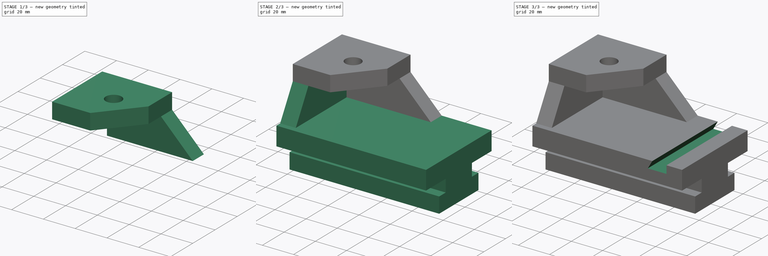
[diagram: build sequence overview — one tinted view per stage of 3, left to right]
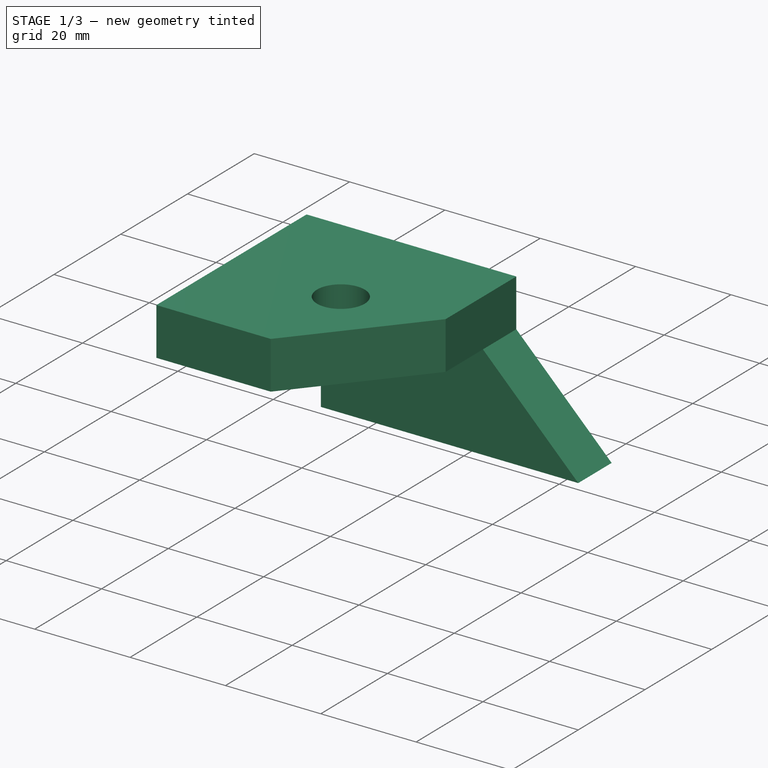
[diagram: stage 1 of 3 — iso view after this stage's code; geometry added in this stage tinted green]
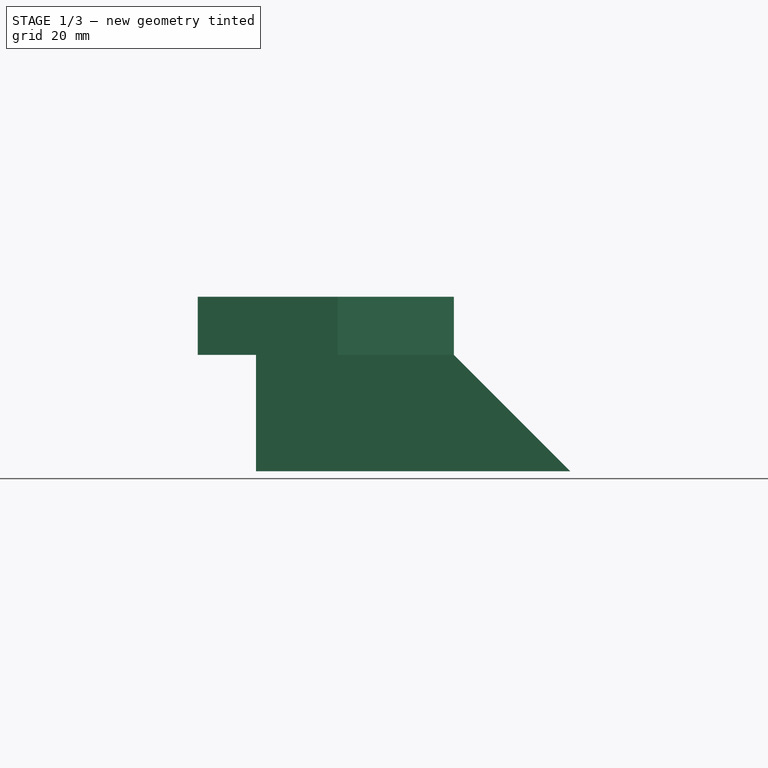
[diagram: stage 1 of 3 — front view after this stage's code; geometry added in this stage tinted green]
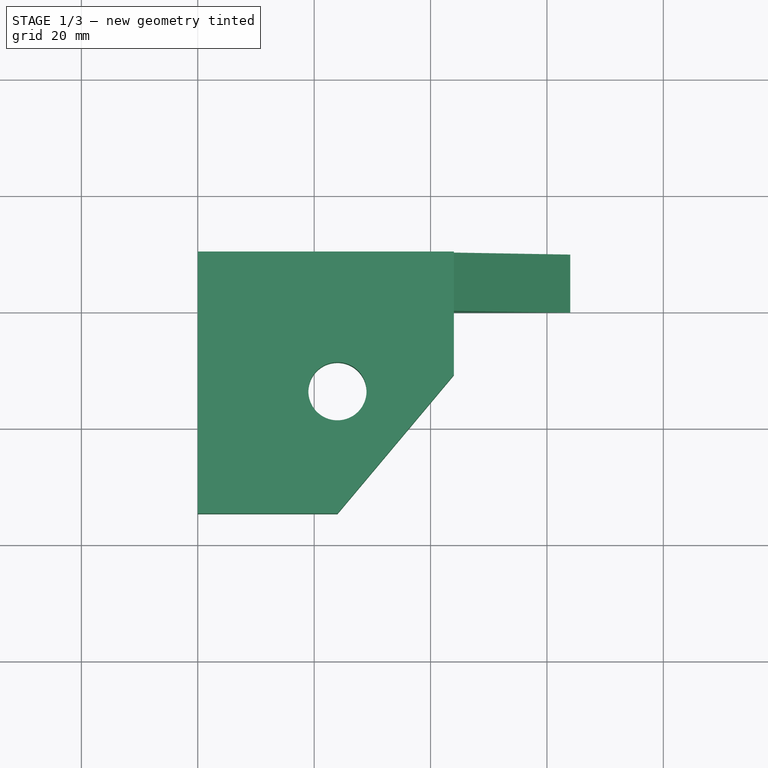
[diagram: stage 1 of 3 — top view after this stage's code; geometry added in this stage tinted green]
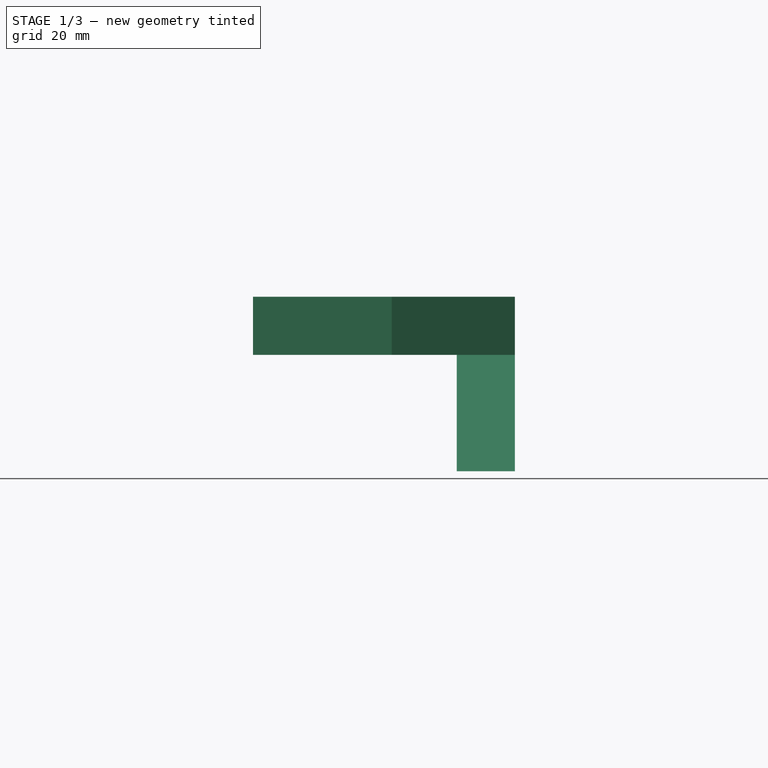
[diagram: stage 1 of 3 — right view after this stage's code; geometry added in this stage tinted green]
FCSTD DOCUMENT  (FreeCAD 0.16R)
Label: Fig 3.38 Final
License: All rights reserved
LicenseURL: http://en.wikipedia.org/wiki/All_rights_reserved
objects: Sketcher::SketchObject×5, PartDesign::Pad×4, PartDesign::Pocket×1, Part::MultiFuse×1
note: 16 computed .brp shape members not serialized (recipe doc carries the construction recipe); baked Part::Feature solids carry a one-line shape summary decoded from their .brp

FEATURE [Sketcher::SketchObject] Sketch003
  Placement = pos=(0,30,0) rot=(-1,0,0;4.71239rad)
  sketch-geometry (5):
    g0: LineSegment StartX=10 StartY=50 StartZ=0 EndX=10 EndY=30 EndZ=0
    g1: LineSegment StartX=10 StartY=30 StartZ=0 EndX=64 EndY=30 EndZ=0
    g2: LineSegment StartX=64 StartY=30 StartZ=0 EndX=44 EndY=50 EndZ=0
    g3: LineSegment StartX=44 StartY=50 StartZ=0 EndX=10 EndY=50 EndZ=0
    g4: LineSegment [constr] StartX=44 StartY=50 StartZ=0 EndX=44 EndY=34.2666 EndZ=0
  constraints (14):
    c: Vertical(g0)
    c: Coincident(g0,g1)
    c: Horizontal(g1)
    c: Coincident(g1,g2)
    c: Coincident(g2,g3)
    c: Coincident(g3,g0)
    c: Horizontal(g3)
    c: DistanceY(g-1,g0) = 50
    c: DistanceY(g-1,g0) = 30
    c: DistanceX(g-1,g0) = 10
    c: Coincident(g4,g2)
    c: Vertical(g4)
    c: Angle(g4,g2) = 0.785398
    c: DistanceX(g-1,g2) = 44
FEATURE [PartDesign::Pad] Pad002
  Length = 10
  Length2 = 100
  Placement = pos=(0,30,0) rot=(-1,0,0;4.71239rad)
  Sketch = -> Sketch003
  Type = 0
FEATURE [Sketcher::SketchObject] Sketch004
  Placement = pos=(0,30,50) rot=(0,0,1;3.14159rad)
  Support = -> Pad002 [Face4]
  sketch-geometry (8):
    g0: LineSegment StartX=0 StartY=0 StartZ=0 EndX=0 EndY=45 EndZ=0
    g1: LineSegment StartX=0 StartY=45 StartZ=0 EndX=-24 EndY=45 EndZ=0
    g2: LineSegment StartX=-24 StartY=45 StartZ=0 EndX=-44 EndY=21.1649 EndZ=0
    g3: LineSegment StartX=-44 StartY=21.1649 StartZ=0 EndX=-44 EndY=0 EndZ=0
    g4: LineSegment StartX=-44 StartY=0 StartZ=0 EndX=0 EndY=0 EndZ=0
    g5: Circle CenterX=-24 CenterY=24 CenterZ=0 NormalX=0 NormalY=0 NormalZ=1 Radius=5
    g6: LineSegment [constr] StartX=-24 StartY=45 StartZ=0 EndX=-24 EndY=11.0778 EndZ=0
    g7: LineSegment [constr] StartX=-24 StartY=45 StartZ=0 EndX=-24 EndY=33.7745 EndZ=0
  constraints (20):
    c: Coincident(g-1,g0)
    c: Vertical(g0)
    c: Coincident(g0,g1)
    c: Horizontal(g1)
    c: Coincident(g1,g2)
    c: Coincident(g2,g3)
    c: PointOnObject(g3,g-1)
    c: Vertical(g3)
    c: Coincident(g3,g4)
    c: Coincident(g4,g0)
    c: DistanceY(g0,g0) = 45
    c: DistanceX(g1,g1) = 24
    c: Angle(g2,g1) = 2.26893
    c: Radius(g5) = 5
    c: Coincident(g6,g1)
    c: Vertical(g6)
    c: PointOnObject(g5,g6)
    c: DistanceY(g-1,g5) = 24
    c: Coincident(g7,g1)
    c: PointOnObject(g7,g6)
FEATURE [PartDesign::Pad] Pad003
  Length = 10
  Length2 = 100
  Placement = pos=(0,30,0) rot=(-1,0,0;4.71239rad)
  Sketch = -> Sketch004
  Type = 0
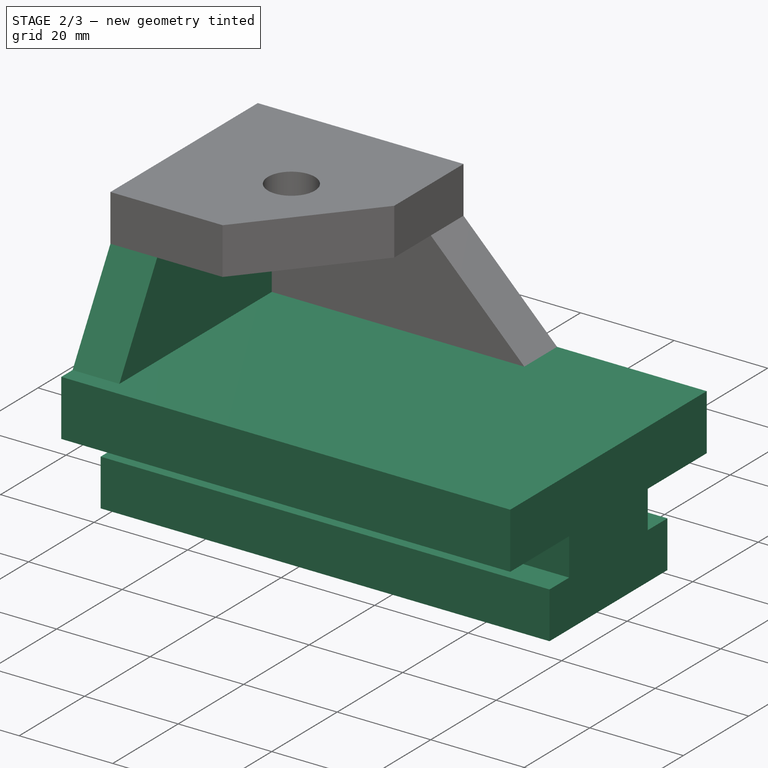
[diagram: stage 2 of 3 — iso view after this stage's code; geometry added in this stage tinted green]
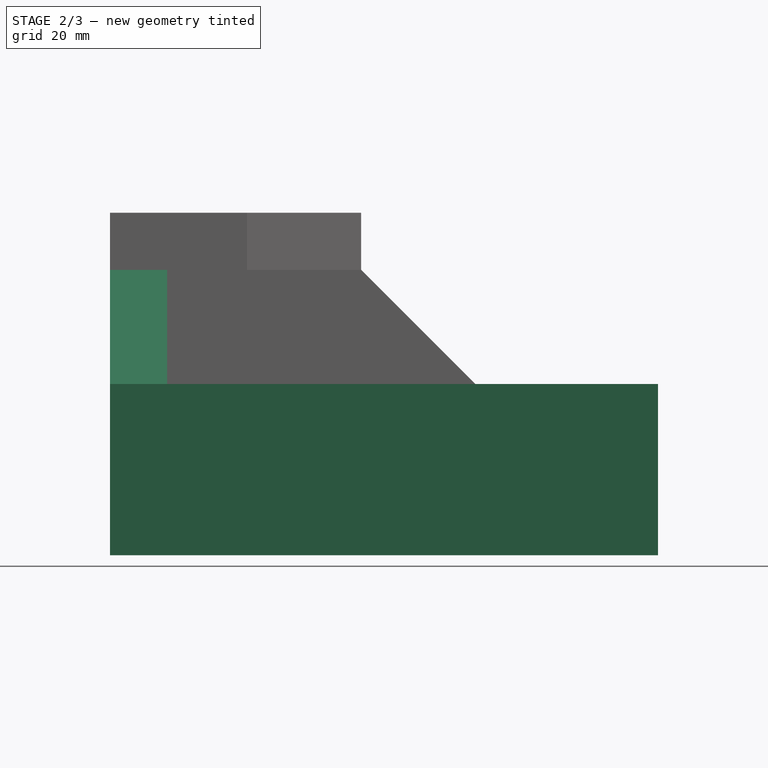
[diagram: stage 2 of 3 — front view after this stage's code; geometry added in this stage tinted green]
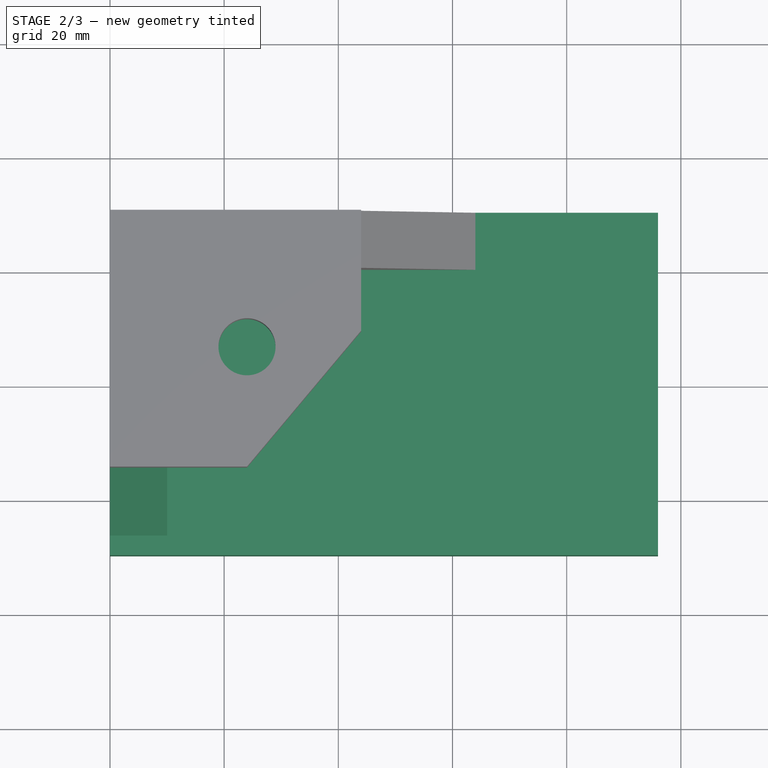
[diagram: stage 2 of 3 — top view after this stage's code; geometry added in this stage tinted green]
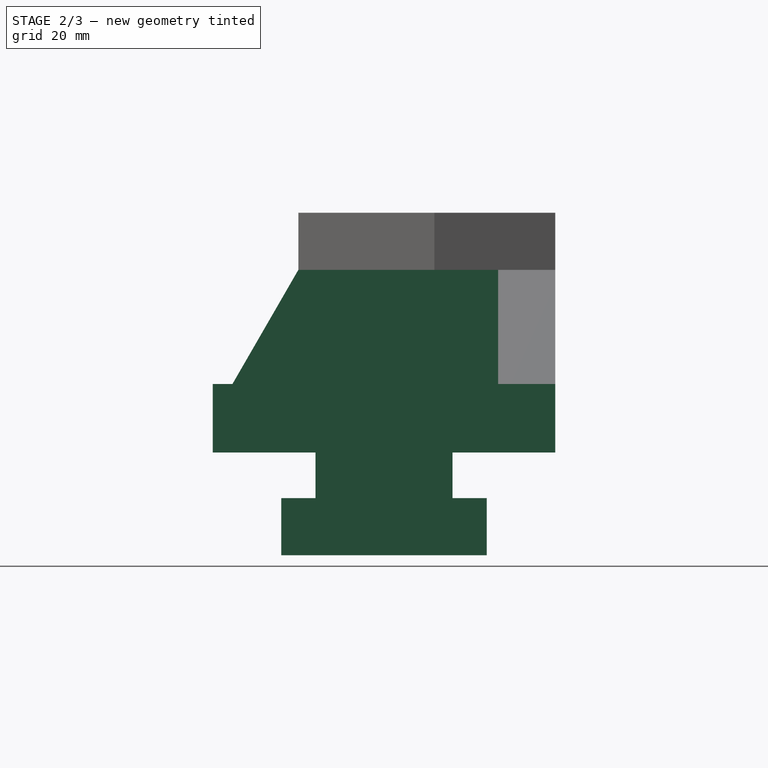
[diagram: stage 2 of 3 — right view after this stage's code; geometry added in this stage tinted green]
FEATURE [Sketcher::SketchObject] Sketch
  Placement = pos=(0,0,0) rot=(0.57735,0.57735,0.57735;2.0944rad)
  sketch-geometry (12):
    g0: LineSegment StartX=-18 StartY=0 StartZ=0 EndX=18 EndY=0 EndZ=0
    g1: LineSegment StartX=18 StartY=0 StartZ=0 EndX=18 EndY=10 EndZ=0
    g2: LineSegment StartX=18 StartY=10 StartZ=0 EndX=12 EndY=10 EndZ=0
    g3: LineSegment StartX=12 StartY=10 StartZ=0 EndX=12 EndY=18 EndZ=0
    g4: LineSegment StartX=12 StartY=18 StartZ=0 EndX=30 EndY=18 EndZ=0
    g5: LineSegment StartX=30 StartY=18 StartZ=0 EndX=30 EndY=30 EndZ=0
    g6: LineSegment StartX=30 StartY=30 StartZ=0 EndX=-30 EndY=30 EndZ=0
    g7: LineSegment StartX=-30 StartY=30 StartZ=0 EndX=-30 EndY=18 EndZ=0
    g8: LineSegment StartX=-30 StartY=18 StartZ=0 EndX=-12 EndY=18 EndZ=0
    g9: LineSegment StartX=-12 StartY=18 StartZ=0 EndX=-12 EndY=10 EndZ=0
    g10: LineSegment StartX=-12 StartY=10 StartZ=0 EndX=-18 EndY=10 EndZ=0
    g11: LineSegment StartX=-18 StartY=10 StartZ=0 EndX=-18 EndY=0 EndZ=0
  constraints (34):
    c: PointOnObject(g0,g-1)
    c: PointOnObject(g0,g-1)
    c: Coincident(g0,g1)
    c: Vertical(g1)
    c: Coincident(g1,g2)
    c: Coincident(g2,g3)
    c: Vertical(g3)
    c: Coincident(g3,g4)
    c: Horizontal(g4)
    c: Coincident(g4,g5)
    c: Vertical(g5)
    c: Coincident(g5,g6)
    c: Horizontal(g6)
    c: Coincident(g6,g7)
    c: Coincident(g7,g8)
    c: Horizontal(g8)
    c: Coincident(g8,g9)
    c: Coincident(g9,g10)
    c: Coincident(g10,g11)
    c: Coincident(g11,g0)
    c: Vertical(g9)
    c: Vertical(g7)
    c: DistanceX(g0,g0) = 36
    c: DistanceX(g9,g2) = 24
    c: Symmetric(g0,g0,g-2)
    c: Symmetric(g9,g2,g-2)
    c: Symmetric(g7,g4,g-2)
    c: DistanceX(g7,g4) = 60
    c: DistanceY(g1,g1) = 10
    c: Horizontal(g2)
    c: Horizontal(g10)
    c: DistanceY(g5,g5) = 12
    c: DistanceY(g0,g5) = 30
    c: DistanceX(g7,g10) = 12
FEATURE [PartDesign::Pad] Pad
  Length = 96
  Length2 = 100
  Placement = pos=(0,0,0) rot=(0.57735,0.57735,0.57735;2.0944rad)
  Sketch = -> Sketch
  Type = 0
FEATURE [Sketcher::SketchObject] Sketch002
  Placement = pos=(0,0,0) rot=(0.57735,0.57735,0.57735;2.0944rad)
  sketch-geometry (4):
    g0: LineSegment StartX=30 StartY=30 StartZ=0 EndX=-26.547 EndY=30 EndZ=0
    g1: LineSegment StartX=-26.547 StartY=30 StartZ=0 EndX=-15 EndY=50 EndZ=0
    g2: LineSegment StartX=-15 StartY=50 StartZ=0 EndX=30 EndY=50 EndZ=0
    g3: LineSegment StartX=30 StartY=50 StartZ=0 EndX=30 EndY=30 EndZ=0
  constraints (12):
    c: Horizontal(g0)
    c: Coincident(g0,g1)
    c: Coincident(g1,g2)
    c: Horizontal(g2)
    c: Coincident(g2,g3)
    c: Coincident(g3,g0)
    c: Vertical(g3)
    c: DistanceY(g-1,g0) = 30
    c: DistanceY(g-1,g2) = 50
    c: Angle(g0,g1) = 1.0472
    c: DistanceX(g2,g2) = 45
    c: DistanceX(g-1,g0) = 30
FEATURE [PartDesign::Pad] Pad001
  Length = 10
  Length2 = 100
  Placement = pos=(0,0,0) rot=(0.57735,0.57735,0.57735;2.0944rad)
  Sketch = -> Sketch002
  Type = 0
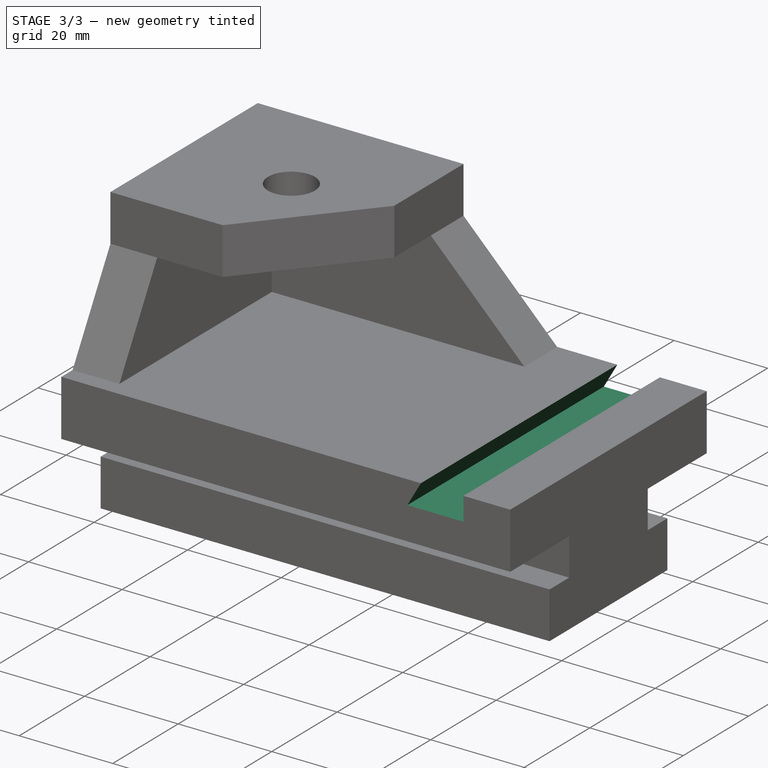
[diagram: stage 3 of 3 — iso view after this stage's code; geometry added in this stage tinted green]
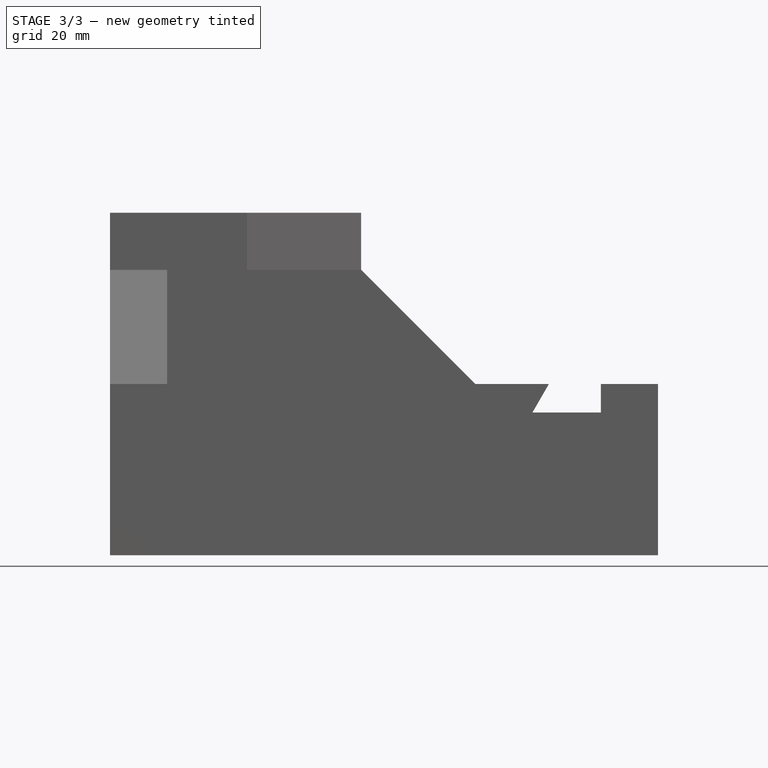
[diagram: stage 3 of 3 — front view after this stage's code; geometry added in this stage tinted green]
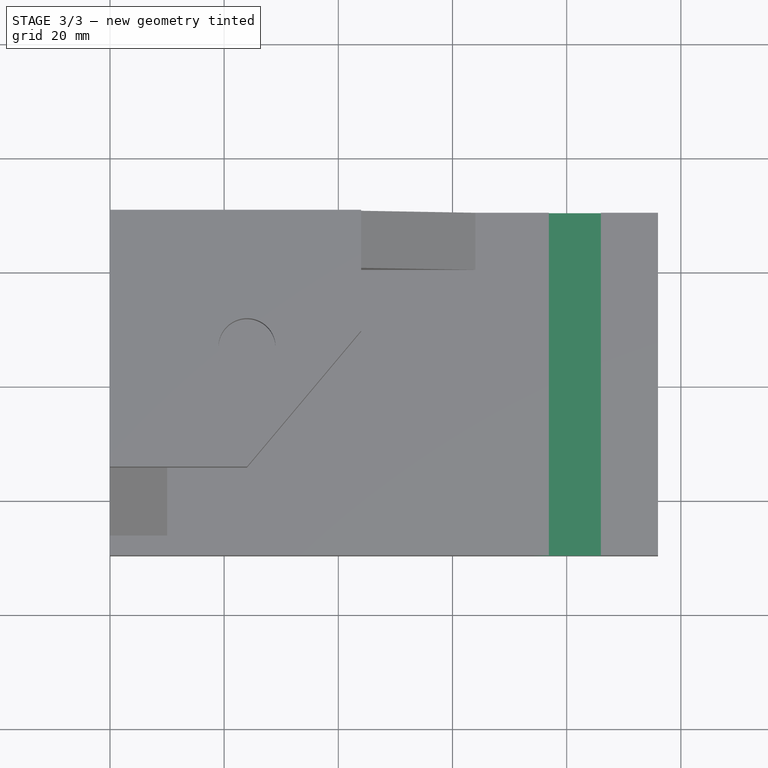
[diagram: stage 3 of 3 — top view after this stage's code; geometry added in this stage tinted green]
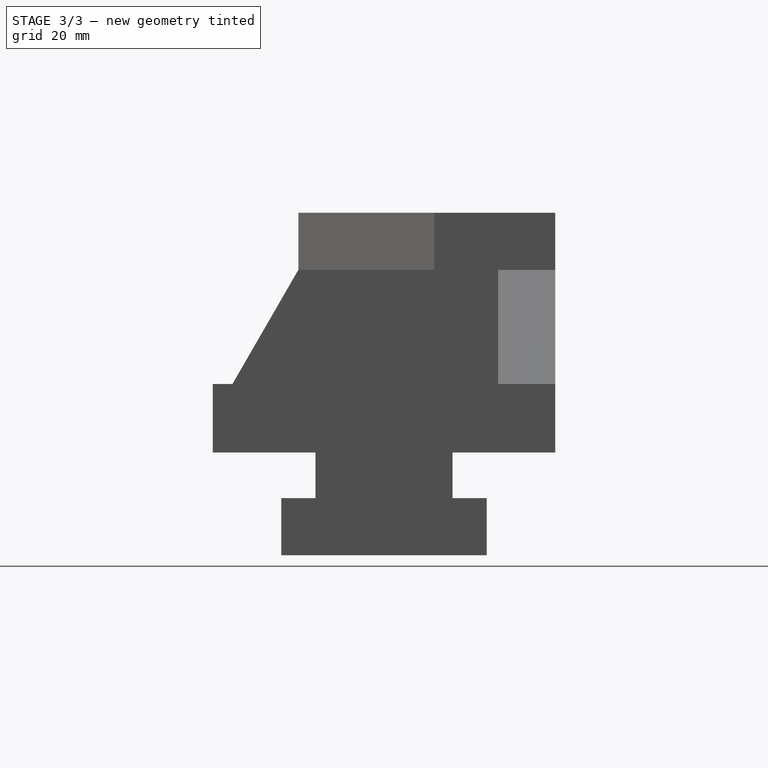
[diagram: stage 3 of 3 — right view after this stage's code; geometry added in this stage tinted green]
FEATURE [Sketcher::SketchObject] Sketch001
  ExternalGeometry = -> [Pad]
  Placement = pos=(0,-30,0) rot=(0.57735,0.57735,-0.57735;2.0944rad)
  Support = -> Pad [Face8]
  sketch-geometry (4):
    g0: LineSegment StartX=-33.6609 StartY=86 StartZ=0 EndX=-25 EndY=86 EndZ=0
    g1: LineSegment StartX=-25 StartY=86 StartZ=0 EndX=-25 EndY=74 EndZ=0
    g2: LineSegment StartX=-25 StartY=74 StartZ=0 EndX=-33.6609 EndY=79.0004 EndZ=0
    g3: LineSegment StartX=-33.6609 StartY=79.0004 StartZ=0 EndX=-33.6609 EndY=86 EndZ=0
  constraints (11):
    c: Coincident(g0,g1)
    c: Coincident(g1,g2)
    c: Coincident(g2,g3)
    c: Coincident(g3,g0)
    c: Horizontal(g0)
    c: Vertical(g1)
    c: Vertical(g3)
    c: DistanceX(g-3,g0) = 5
    c: DistanceY(g0,g-3) = 10
    c: DistanceY(g1,g1) = 12
    c: Angle(g1,g2) = 1.0472
FEATURE [PartDesign::Pocket] Pocket
  Length = 5
  Placement = pos=(0,0,0) rot=(0.57735,0.57735,0.57735;2.0944rad)
  Sketch = -> Sketch001
  Type = 1
FEATURE [Part::MultiFuse] Fusion
  Shapes = -> [Pocket,Pad001,Pad003]
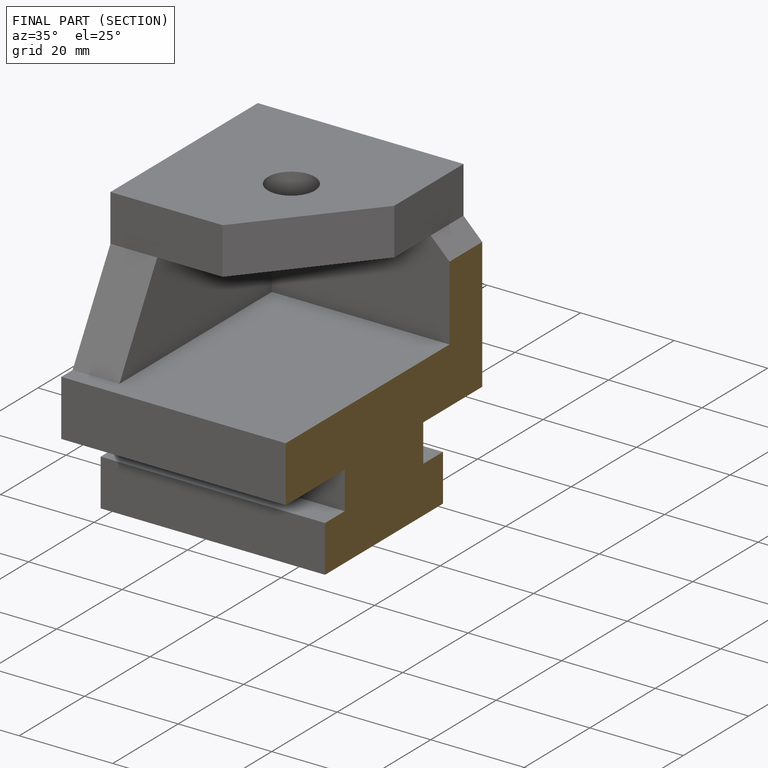
[diagram: finished part — half-section view (interior)]
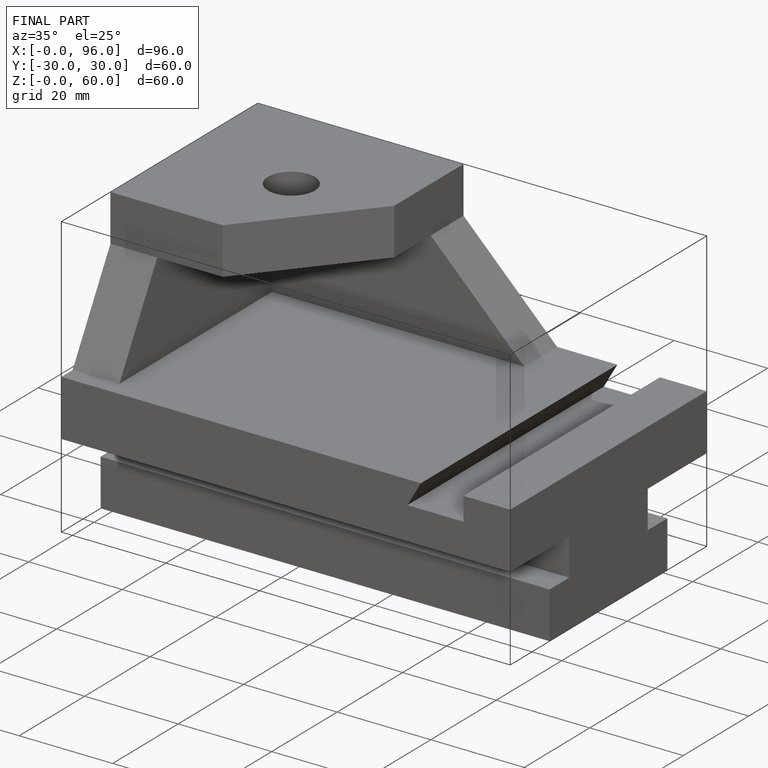
[diagram: finished part — iso view with bounding-box wireframe]
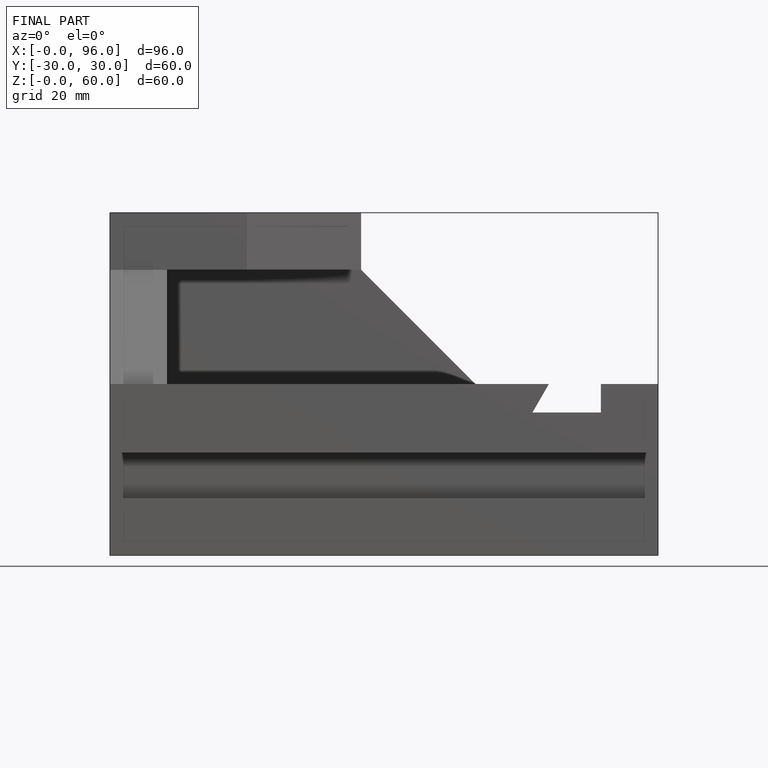
[diagram: finished part — front view with bounding-box wireframe]
